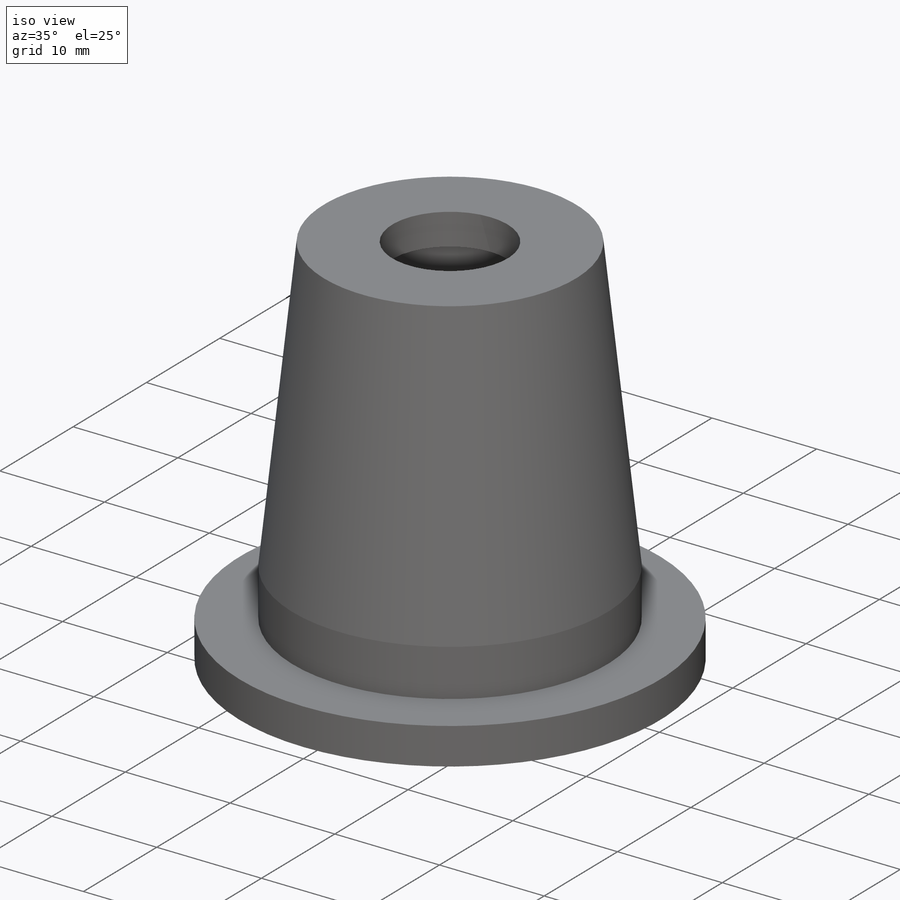
[diagram: iso view]
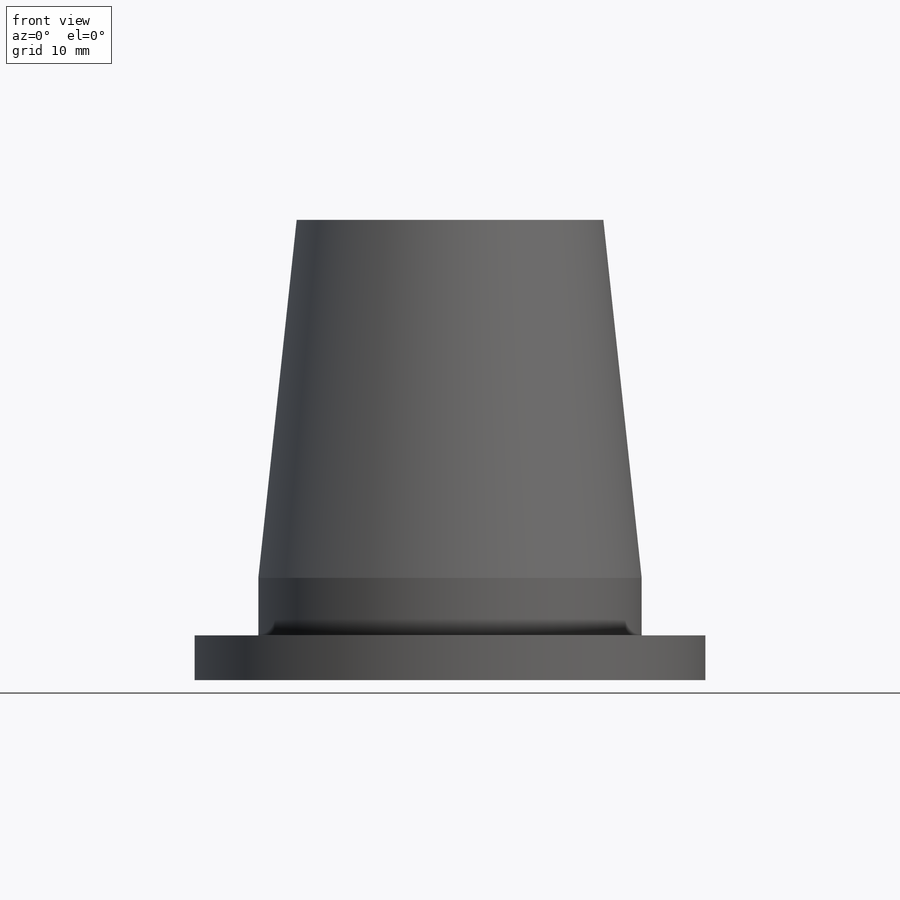
[diagram: front view]
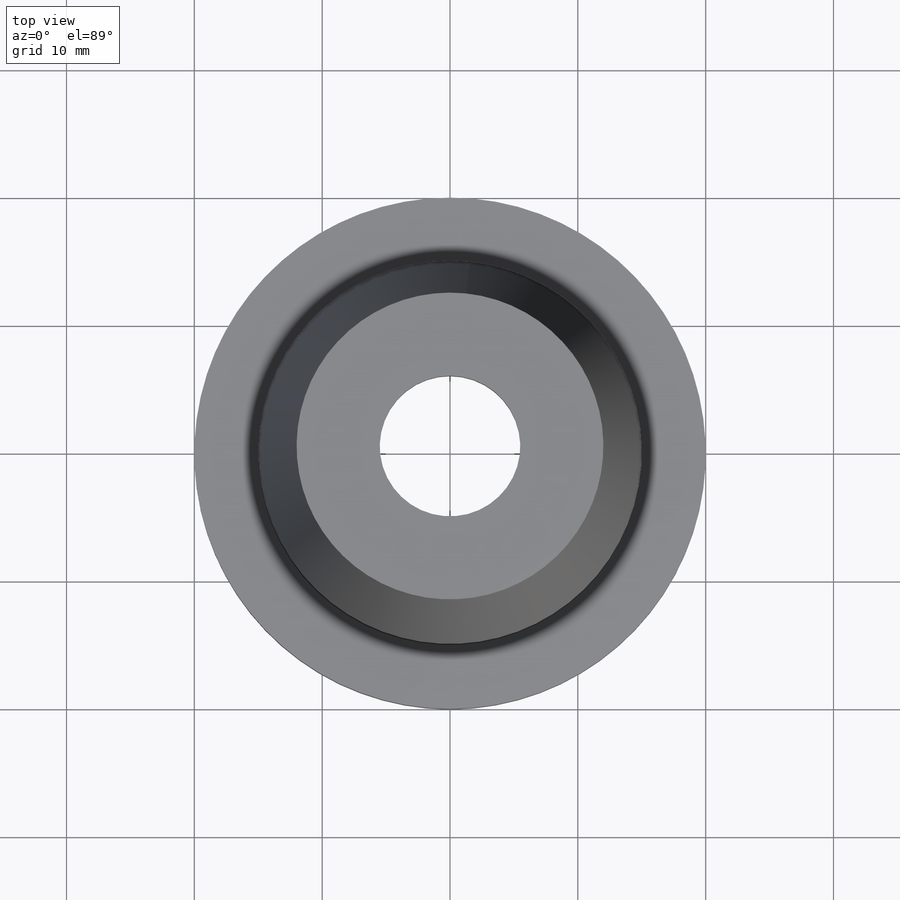
[diagram: top view]
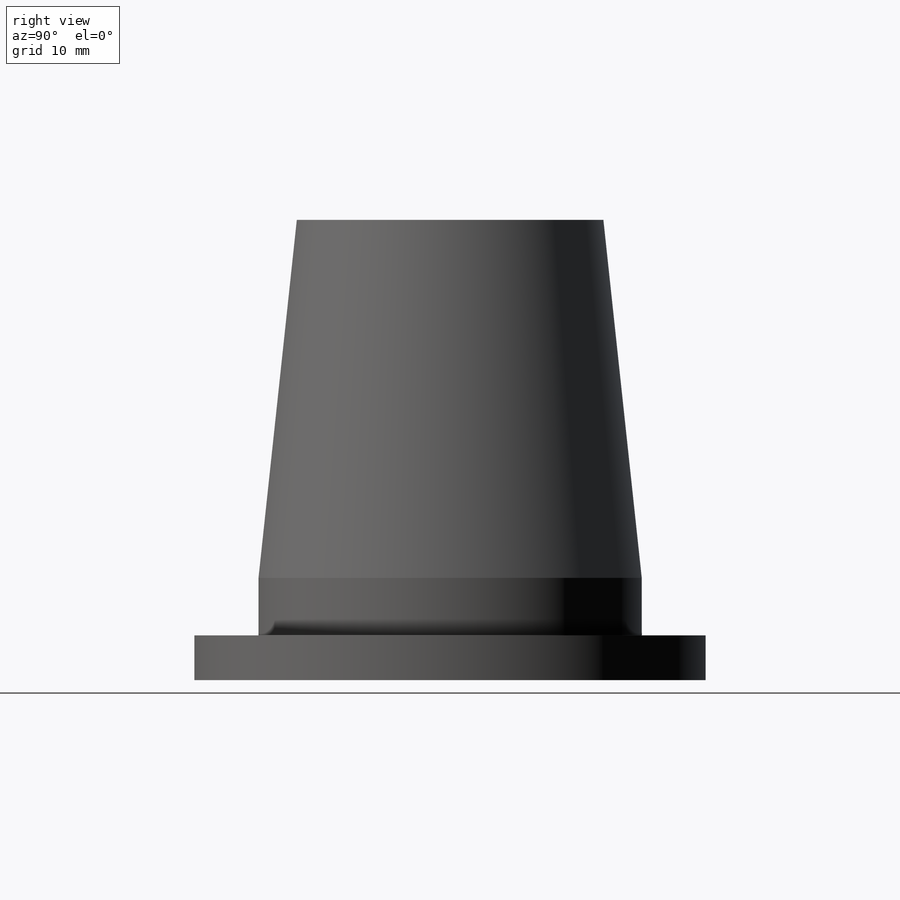
[diagram: right view]
SOLIDWORKS PART (.sldprt)
format: sldprt  version: not decoded by parser v0  size: 307,200 bytes
history: native  units: mm
features: plane x3, sketch x2, material x1, revolve x1, cut_revolve x1, chamfer x1 (+9 scaffold rows collapsed)
feature tree (18):
  scaffold x9  (default folders/planes/origin — collapsed)
  material  "Сталь"
  plane  "Спереди"
  plane  "Сверху"
  plane  "Справа"
  sketch  "Эскиз1"  dims[D1=20.0mm D2=3.5mm D3=15.0mm D4=4.5mm D5=9.0mm D6=12.0mm D7=36.0mm D8=6.5mm D9=33.0mm]
  revolve  "Повернуть1"  Angle=360deg
  sketch  "Эскиз2"  dims[D2=2.0mm D1=15.5mm D3=3.0mm D4=2.0mm]
  cut_revolve  "Вырез-Повернуть1"  Angle=360deg
  chamfer  "Фаска1"  Distance=3mm Angle=45deg
decode coverage: 5 of 5 modeling features carry decoded parameters
note: suppression state not decoded; provenance and decode notes live in map.json
